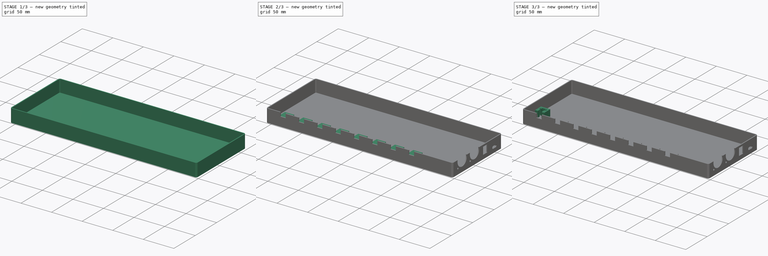
[diagram: build sequence overview — one tinted view per stage of 3, left to right]
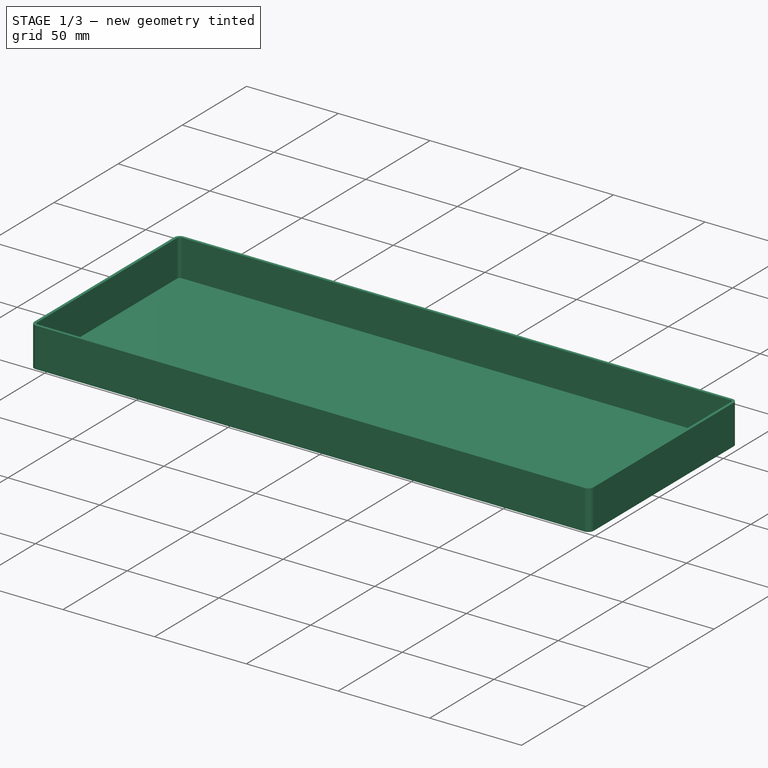
[diagram: stage 1 of 3 — iso view after this stage's code; geometry added in this stage tinted green]
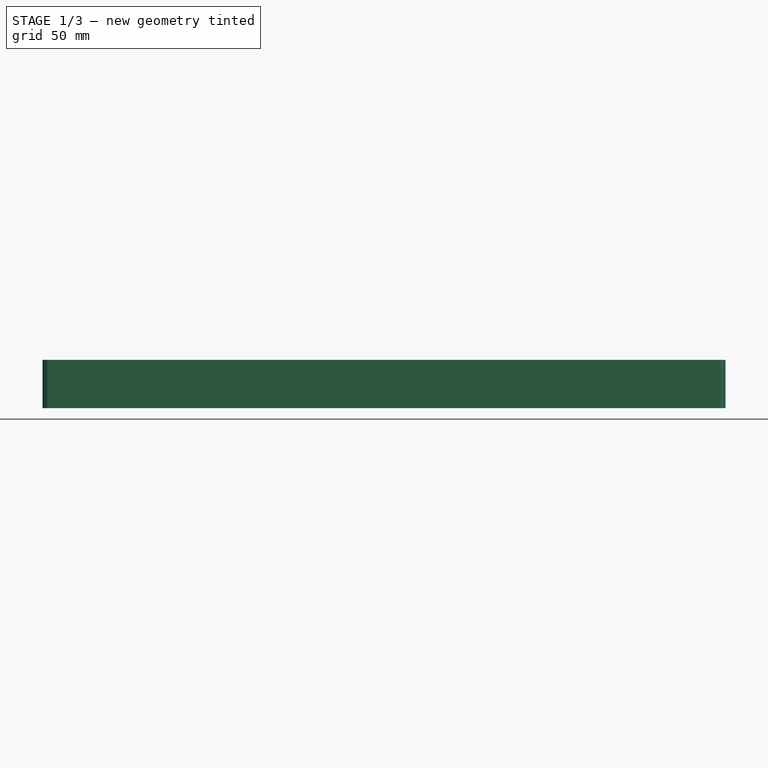
[diagram: stage 1 of 3 — front view after this stage's code; geometry added in this stage tinted green]
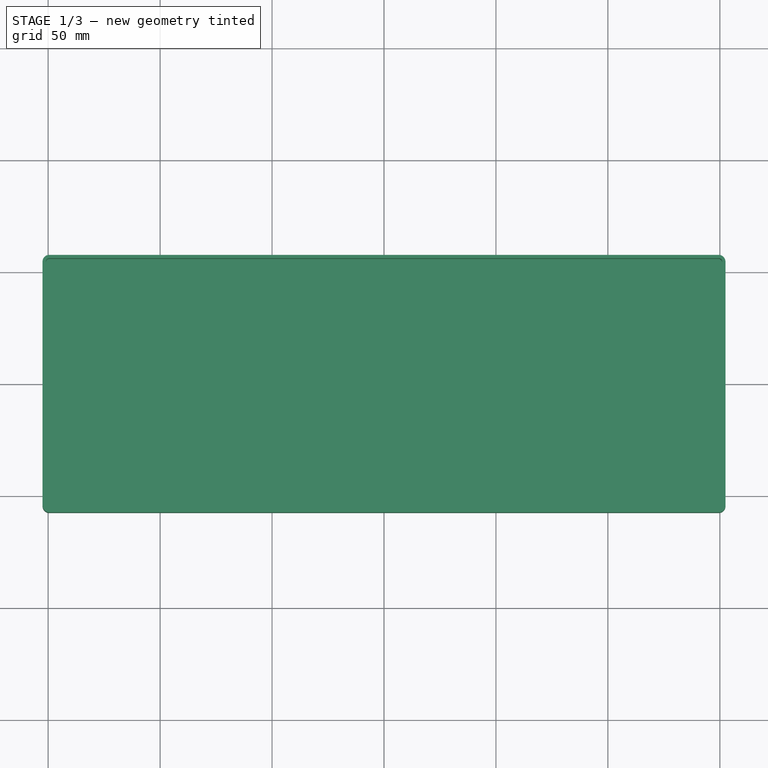
[diagram: stage 1 of 3 — top view after this stage's code; geometry added in this stage tinted green]
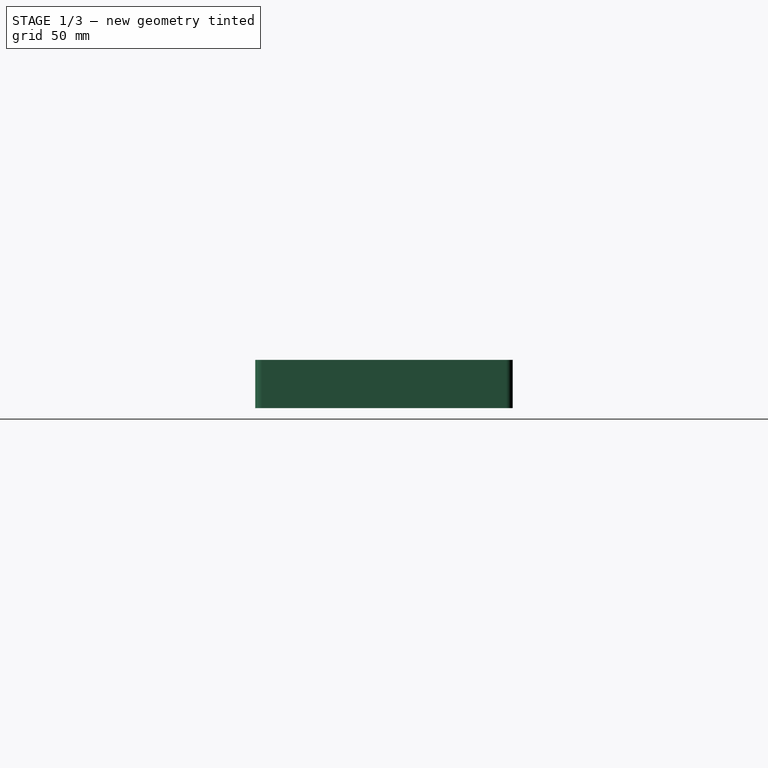
[diagram: stage 1 of 3 — right view after this stage's code; geometry added in this stage tinted green]
FCSTD DOCUMENT  (FreeCAD 0.19RUnknown)
Label: ELController case
License: All rights reserved
LicenseURL: http://en.wikipedia.org/wiki/All_rights_reserved
objects: Sketcher::SketchObject×7, PartDesign::Plane×6, PartDesign::Pad×4, PartDesign::Pocket×3, PartDesign::Line×2, PartDesign::Point×2, Spreadsheet::Sheet×1, PartDesign::Body×1
note: 32 computed .brp shape members not serialized (recipe doc carries the construction recipe); baked Part::Feature solids carry a one-line shape summary decoded from their .brp

FEATURE [Sketcher::SketchObject] Sketch  label="Bottom"
  FullyConstrained = true
  MapMode = 5
  Support = -> [XY_Plane]
  expr: Constraints[11] = <<Variables>>.width + <<Variables>>.inset * 2 + <<Variables>>.thickness * 2
  expr: Constraints[10] = <<Variables>>.length + <<Variables>>.inset * 2 + <<Variables>>.thickness * 2
  expr: Constraints[28] = <<Variables>>.corner_radius
  expr: Constraints[30] = <<Variables>>.corner_radius
  expr: Constraints[31] = <<Variables>>.corner_radius
  expr: Constraints[29] = <<Variables>>.corner_radius
  sketch-geometry (14):
    g0: LineSegment StartX=-149.5 StartY=57.5 StartZ=0 EndX=149.5 EndY=57.5 EndZ=0
    g1: LineSegment StartX=152.5 StartY=54.5 StartZ=0 EndX=152.5 EndY=-54.5 EndZ=0
    g2: LineSegment StartX=149.5 StartY=-57.5 StartZ=0 EndX=-149.5 EndY=-57.5 EndZ=0
    g3: LineSegment StartX=-152.5 StartY=-54.5 StartZ=0 EndX=-152.5 EndY=54.5 EndZ=0
    g4: LineSegment StartX=-152.5 StartY=57.5 StartZ=0 EndX=0 EndY=0 EndZ=0
    g5: LineSegment StartX=0 StartY=0 StartZ=0 EndX=152.5 EndY=-57.5 EndZ=0
    g6: ArcOfCircle CenterX=-149.5 CenterY=-54.5 CenterZ=0 NormalX=0 NormalY=0 NormalZ=1 AngleXU=0 Radius=3 StartAngle=3.14159 EndAngle=4.71239
    g7: GeomPoint X=-152.5 Y=-57.5 Z=0
    g8: ArcOfCircle CenterX=-149.5 CenterY=54.5 CenterZ=0 NormalX=0 NormalY=0 NormalZ=1 AngleXU=0 Radius=3 StartAngle=1.5708 EndAngle=3.14159
    g9: GeomPoint X=-152.5 Y=57.5 Z=0
    g10: ArcOfCircle CenterX=149.5 CenterY=54.5 CenterZ=0 NormalX=0 NormalY=0 NormalZ=1 AngleXU=0 Radius=3 StartAngle=0 EndAngle=1.5708
    g11: GeomPoint X=152.5 Y=57.5 Z=0
    g12: ArcOfCircle CenterX=149.5 CenterY=-54.5 CenterZ=0 NormalX=0 NormalY=0 NormalZ=1 AngleXU=0 Radius=3 StartAngle=4.71239 EndAngle=6.28319
    g13: GeomPoint X=152.5 Y=-57.5 Z=0
  constraints (32):
    c: Horizontal(g0)
    c: Horizontal(g2)
    c: Vertical(g1)
    c: Vertical(g3)
    c: Coincident(g4,g9)
    c: Coincident(g4,g-1)
    c: Coincident(g5,g-1)
    c: Coincident(g5,g13)
    c: Equal(g4,g5)
    c: Parallel(g4,g5)
    c: Distance(g9,g7) = 115
    c: Distance(g11,g9) = 305
    c: PointOnObject(g7,g2)
    c: PointOnObject(g7,g3)
    c: Tangent(g2,g6) = 1.5708
    c: Tangent(g3,g6) = 1.5708
    c: PointOnObject(g9,g3)
    c: PointOnObject(g9,g0)
    c: Tangent(g3,g8) = 1.5708
    c: Tangent(g0,g8) = 1.5708
    c: PointOnObject(g11,g0)
    c: PointOnObject(g11,g1)
    c: Tangent(g0,g10) = 1.5708
    c: Tangent(g1,g10) = 1.5708
    c: PointOnObject(g13,g1)
    c: PointOnObject(g13,g2)
    c: Tangent(g1,g12) = 1.5708
    c: Tangent(g2,g12) = 1.5708
    c: Distance(g2,g7) = 3
    c: Distance(g3,g4) = 3
    c: Distance(g1,g11) = 3
    c: Distance(g2,g5) = 3
FEATURE [Spreadsheet::Sheet] Spreadsheet  label="Variables"
  cells = A1=width; B1(width)=300; D1=Connectors; G1=Connector spacing; A2=length; B2(length)=110; D2=Connector inset; E2(connector_inset)=0.5; G2=DMX center to edge female; H2=13; J2=PCB thickness; K2(pcb_thickness)=1.6; A3=height; B3(height)=20; D3=DMX diameter; E3(dmx_diameter)=22; G3=DMX center to edge male; H3=13.3; J3=PCB bottom distance; K3(pcb_bottom_distance)=5; A4=inset; B4(inset)=1; D4=DMX screw diameter; E4(dmx_screw_diameter)=3.2; G4=DMX edge to edge; H4=2.475; A5=corner radius; B5(corner_radius)=3; D5=DMX screw distance; E5(dmx_screw_distance)=9.9; G5=DMX spacing; H5(dmx_spacing)==H2 + H3 + H4; A6=thickness; B6(thickness)=1.5; D6=DMX bottom distance; E6(dmx_bottom_distance)=12.5; A7=channel count; B7(channel_count)=8; D8=barrel jack width; E8(barrel_jack_width)=9; G8=barrel jack center to edge; H8=7.5; D9=barrel jack height; E9(barrel_jack_height)=11; G9=barrel jack to DMX; H9=4.19; G10=barrel jack spacing; H10(barrel_jack_spacing)==H8 + H9 + H3; D12=USB width; E12(usb_width)=8.949999999999999; G12=USB center to edge; H12=6.62; D13=USB height; E13(usb_height)=3.13; G13=USB to barrel jack; H13=7.38; G14=USB spacing; H14(usb_spacing)==H12 + H13 + H8; G15=USB edge to board edge; H15=8.225; G16=USB edge spacing; H16==H15 + H12; G17=USB center spacing; H17(usb_center_spacing)==length / 2 - H16; G19=JST-SM width; H19(jst_sm_width)=7.8; G20=JST-SM height; H20(jst_sm_height)=7.5; G21=JST-SM lock width; H21(jst_sm_lock_width)=3.15; G22=JST-SM lock height; H22(jst_sm_lock_height)=2.9; G23=JST-SM spacing; H23(jst_sm_spacing)=30; G24=JST-SM to board edge; H24(jst_sm_to_board_edge)=25; G25=JST-SM bottom distance; H25(jst_sm_bottom_distance)=15; G26=JST-SM insertion tolerance; H26(jst_sm_insertion_tolerance)=0.5; G27=JST-SM holder width; H27(jst_sm_holder_width)=11.15; G28=JST-SM length; H28(jst_sm_length)=10.63; G29=JST-SM female width; H29(jst_sm_female_width)=5.51; G30=JST-SM female height; H30(jst_sm_female_height)=5; G31=JST-SM holder offset; H31(jst_sm_holder_offset)=4.6; G32=JST-SM clamping space; H32(jst_sm_clamping_space)=0.2; G33=JST-SM carrier overwidth; H33(jst_sm_carrier_overwidth)=2; G34=JST-SM carrier min thickness; H34(jst_sm_carrier_min_thickness)=3; G35=JST-SM carrier max thickness; H35(jst_sm_carrier_max_thickness)=10; G36=JST-SM holder arm space; H36(jst_sm_holder_arm_space)=1.3; G37=JST-SM holder arm thickness; H37(jst_sm_holder_arm_thickness)=0.9; G38=JST-SM holder arm peak offset; H38(jst_sm_holder_arm_peak_offset)=8; G39=JST-SM female end plate width; H39(jst_sm_female_end_plate_width)=1.3
FEATURE [PartDesign::Pad] Pad  label="Bottom001"
  Direction = (1,1,1)
  Length = 1.5
  Length2 = 100
  Profile = -> Sketch
  Type = 0
  expr: Length = <<Variables>>.thickness
FEATURE [PartDesign::Plane] DatumPlane  label="Bottom inside"
  Length = 342.457
  MapMode = 5
  Placement = pos=(0,0,1.5) rot=(0,0,1;0rad)
  ResizeMode = 0
  Support = -> [Pad]
  Width = 152.457
FEATURE [Sketcher::SketchObject] Sketch002  label="Sides"
  FullyConstrained = true
  MapMode = 5
  Placement = pos=(0,0,1.5) rot=(0,0,1;0rad)
  Support = -> [DatumPlane]
  expr: Constraints[58] = <<Variables>>.thickness
  expr: Constraints[56] = <<Variables>>.thickness
  expr: Constraints[53] = <<Variables>>.thickness
  expr: Constraints[54] = <<Variables>>.thickness
  expr: Constraints[11] = Sketch.Constraints[11]
  expr: Constraints[29] = Sketch.Constraints[29]
  expr: Constraints[31] = Sketch.Constraints[31]
  expr: Constraints[30] = Sketch.Constraints[30]
  expr: Constraints[28] = Sketch.Constraints[28]
  expr: Constraints[10] = Sketch.Constraints[10]
  sketch-geometry (26):
    g0: LineSegment StartX=-149.5 StartY=57.5 StartZ=0 EndX=149.5 EndY=57.5 EndZ=0
    g1: LineSegment StartX=152.5 StartY=54.5 StartZ=0 EndX=152.5 EndY=-54.5 EndZ=0
    g2: LineSegment StartX=149.5 StartY=-57.5 StartZ=0 EndX=-149.5 EndY=-57.5 EndZ=0
    g3: LineSegment StartX=-152.5 StartY=-54.5 StartZ=0 EndX=-152.5 EndY=54.5 EndZ=0
    g4: LineSegment StartX=-152.5 StartY=57.5 StartZ=0 EndX=0 EndY=0 EndZ=0
    g5: LineSegment StartX=0 StartY=0 StartZ=0 EndX=152.5 EndY=-57.5 EndZ=0
    g6: ArcOfCircle CenterX=-149.5 CenterY=-54.5 CenterZ=0 NormalX=0 NormalY=0 NormalZ=1 AngleXU=0 Radius=3 StartAngle=3.14159 EndAngle=4.71239
    g7: GeomPoint X=-152.5 Y=-57.5 Z=0
    g8: ArcOfCircle CenterX=-149.5 CenterY=54.5 CenterZ=0 NormalX=0 NormalY=0 NormalZ=1 AngleXU=0 Radius=3 StartAngle=1.5708 EndAngle=3.14159
    g9: GeomPoint X=-152.5 Y=57.5 Z=0
    g10: ArcOfCircle CenterX=149.5 CenterY=54.5 CenterZ=0 NormalX=0 NormalY=0 NormalZ=1 AngleXU=0 Radius=3 StartAngle=3e-16 EndAngle=1.5708
    g11: GeomPoint X=152.5 Y=57.5 Z=0
    g12: ArcOfCircle CenterX=149.5 CenterY=-54.5 CenterZ=0 NormalX=0 NormalY=0 NormalZ=1 AngleXU=0 Radius=3 StartAngle=4.71239 EndAngle=6.28319
    g13: GeomPoint X=152.5 Y=-57.5 Z=0
    g14: LineSegment StartX=-149.5 StartY=56 StartZ=0 EndX=149.5 EndY=56 EndZ=0
    g15: LineSegment StartX=151 StartY=54.5 StartZ=0 EndX=151 EndY=-54.5 EndZ=0
    g16: LineSegment StartX=149.5 StartY=-56 StartZ=0 EndX=-149.5 EndY=-56 EndZ=0
    g17: LineSegment StartX=-151 StartY=-54.5 StartZ=0 EndX=-151 EndY=54.5 EndZ=0
    g18: ArcOfCircle CenterX=-149.5 CenterY=54.5 CenterZ=0 NormalX=0 NormalY=0 NormalZ=1 AngleXU=0 Radius=1.5 StartAngle=1.5708 EndAngle=3.14159
    g19: ArcOfCircle CenterX=149.5 CenterY=54.5 CenterZ=0 NormalX=0 NormalY=0 NormalZ=1 AngleXU=0 Radius=1.5 StartAngle=-1.8e-15 EndAngle=1.5708
    g20: ArcOfCircle CenterX=149.5 CenterY=-54.5 CenterZ=0 NormalX=0 NormalY=0 NormalZ=1 AngleXU=0 Radius=1.5 StartAngle=4.71239 EndAngle=6.28319
    g21: ArcOfCircle CenterX=-149.5 CenterY=-54.5 CenterZ=0 NormalX=0 NormalY=0 NormalZ=1 AngleXU=0 Radius=1.5 StartAngle=3.14159 EndAngle=4.71239
    g22: LineSegment StartX=-149.5 StartY=-57.5 StartZ=0 EndX=-149.5 EndY=-56 EndZ=0
    g23: LineSegment StartX=-151 StartY=54.5 StartZ=0 EndX=-152.5 EndY=54.5 EndZ=0
    g24: LineSegment StartX=149.5 StartY=56 StartZ=0 EndX=149.5 EndY=57.5 EndZ=0
    g25: LineSegment StartX=151 StartY=-54.5 StartZ=0 EndX=152.5 EndY=-54.5 EndZ=0
  constraints (60):
    c: Horizontal(g0)
    c: Horizontal(g2)
    c: Vertical(g1)
    c: Vertical(g3)
    c: Coincident(g4,g9)
    c: Coincident(g4,g-1)
    c: Coincident(g5,g-1)
    c: Coincident(g5,g13)
    c: Equal(g4,g5)
    c: Parallel(g4,g5)
    c: Distance(g9,g7) = 115
    c: Distance(g11,g9) = 305
    c: PointOnObject(g7,g2)
    c: PointOnObject(g7,g3)
    c: Tangent(g2,g6) = 1.5708
    c: Tangent(g3,g6) = 1.5708
    c: PointOnObject(g9,g3)
    c: PointOnObject(g9,g0)
    c: Tangent(g3,g8) = 1.5708
    c: Tangent(g0,g8) = 1.5708
    c: PointOnObject(g11,g0)
    c: PointOnObject(g11,g1)
    c: Tangent(g0,g10) = 1.5708
    c: Tangent(g1,g10) = 1.5708
    c: PointOnObject(g13,g1)
    c: PointOnObject(g13,g2)
    c: Tangent(g1,g12) = 1.5708
    c: Tangent(g2,g12) = 1.5708
    c: Distance(g2,g7) = 3
    c: Distance(g3,g4) = 3
    c: Distance(g1,g11) = 3
    c: Distance(g2,g5) = 3
    c: Horizontal(g14)
    c: Horizontal(g16)
    c: Vertical(g15)
    c: Vertical(g17)
    c: Tangent(g17,g18) = 1.5708
    c: Tangent(g14,g18) = 1.5708
    c: Tangent(g14,g19) = 1.5708
    c: Tangent(g15,g19) = 1.5708
    c: Tangent(g16,g20) = 1.5708
    c: Tangent(g15,g20) = 1.5708
    c: Tangent(g16,g21) = 1.5708
    c: Tangent(g17,g21) = 1.5708
    c: Coincident(g22,g2)
    c: Coincident(g22,g16)
    c: Coincident(g23,g17)
    c: Coincident(g23,g3)
    c: Coincident(g24,g14)
    c: Coincident(g24,g0)
    c: Coincident(g25,g15)
    c: Coincident(g25,g1)
    c: Perpendicular(g2,g22)
    c: Distance(g22) = 1.5
    c: Distance(g17,g3) = 1.5
    c: Perpendicular(g17,g23)
    c: Distance(g24) = 1.5
    c: Perpendicular(g14,g24)
    c: Distance(g25) = 1.5
    c: Perpendicular(g15,g25)
FEATURE [PartDesign::Pad] Pad001  label="Sides001"
  BaseFeature = -> Pad
  Direction = (1,1,1)
  Length = 20
  Length2 = 100
  Profile = -> Sketch002
  Type = 0
  expr: Length = <<Variables>>.height
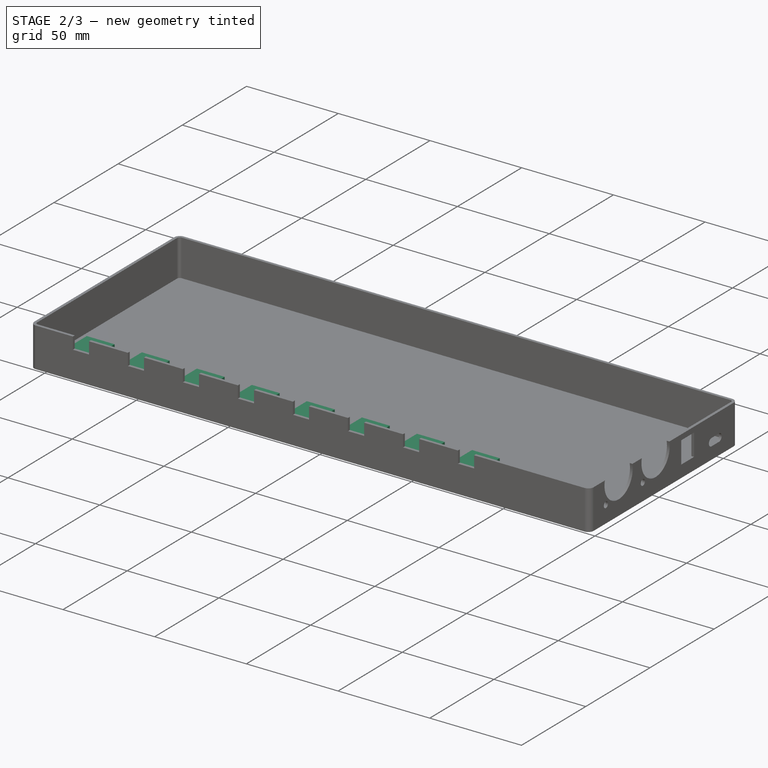
[diagram: stage 2 of 3 — iso view after this stage's code; geometry added in this stage tinted green]
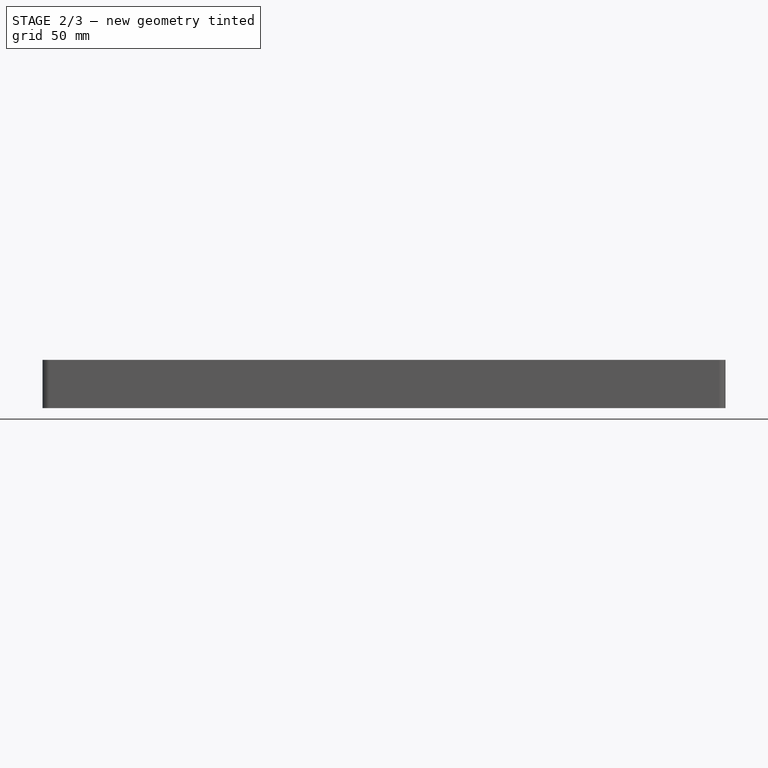
[diagram: stage 2 of 3 — front view after this stage's code; geometry added in this stage tinted green]
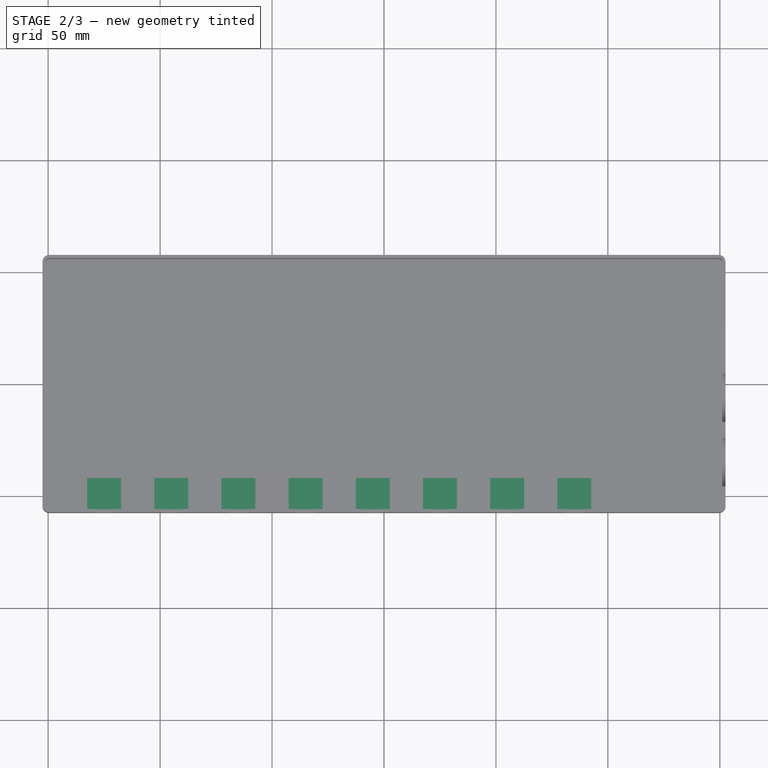
[diagram: stage 2 of 3 — top view after this stage's code; geometry added in this stage tinted green]
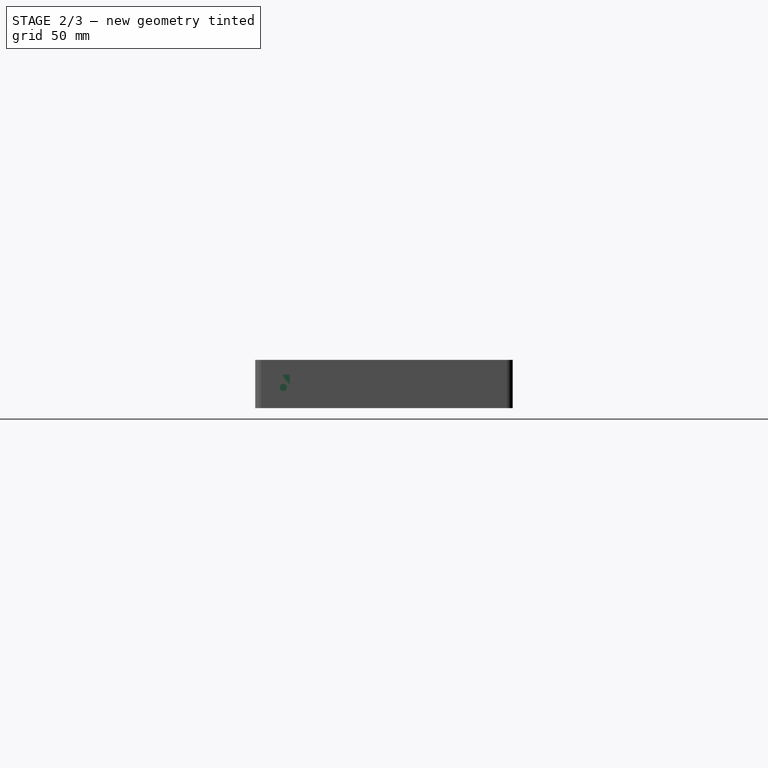
[diagram: stage 2 of 3 — right view after this stage's code; geometry added in this stage tinted green]
FEATURE [PartDesign::Plane] DatumPlane004  label="Left side"
  Length = 130.166
  MapMode = 5
  Placement = pos=(152.5,0,0) rot=(0.57735,0.57735,0.57735;2.0944rad)
  ResizeMode = 0
  Support = -> [Pad001]
  Width = 65.1658
FEATURE [Sketcher::SketchObject] Sketch003  label="Connectors"
  FullyConstrained = true
  MapMode = 5
  Placement = pos=(152.5,0,0) rot=(0.57735,0.57735,0.57735;2.0944rad)
  Support = -> [DatumPlane004]
  expr: Constraints[19] = <<Variables>>.dmx_screw_diameter
  expr: Constraints[23] = <<Variables>>.dmx_screw_distance
  expr: Constraints[61] = <<Variables>>.usb_center_spacing
  expr: Constraints[39] = <<Variables>>.dmx_spacing
  expr: Constraints[62] = <<Variables>>.dmx_bottom_distance
  expr: Constraints[20] = <<Variables>>.dmx_screw_distance
  expr: Constraints[49] = <<Variables>>.barrel_jack_spacing
  expr: Constraints[63] = <<Variables>>.pcb_thickness + <<Variables>>.pcb_bottom_distance
  expr: Constraints[57] = <<Variables>>.usb_width + <<Variables>>.connector_inset * 2
  expr: Constraints[50] = <<Variables>>.usb_spacing
  expr: Constraints[18] = <<Variables>>.dmx_screw_diameter
  expr: Constraints[14] = <<Variables>>.dmx_diameter
  expr: Constraints[22] = <<Variables>>.dmx_screw_distance
  expr: Constraints[17] = <<Variables>>.dmx_screw_diameter
  expr: Constraints[27] = <<Variables>>.dmx_screw_distance
  expr: Constraints[29] = <<Variables>>.barrel_jack_height + <<Variables>>.connector_inset * 2
  expr: Constraints[26] = <<Variables>>.dmx_screw_distance
  expr: Constraints[24] = <<Variables>>.dmx_screw_distance
  expr: Constraints[30] = <<Variables>>.usb_height + <<Variables>>.connector_inset * 2
  expr: Constraints[21] = <<Variables>>.dmx_screw_distance
  expr: Constraints[25] = <<Variables>>.dmx_screw_distance
  expr: Constraints[28] = <<Variables>>.barrel_jack_width + <<Variables>>.connector_inset * 2
  expr: Constraints[16] = <<Variables>>.dmx_screw_diameter
  expr: Constraints[15] = <<Variables>>.dmx_diameter
  sketch-geometry (24):
    g0: Circle CenterX=-35.11 CenterY=19.1 CenterZ=0 NormalX=0 NormalY=0 NormalZ=1 AngleXU=0 Radius=11
    g1: Circle CenterX=-6.335 CenterY=19.1 CenterZ=0 NormalX=0 NormalY=0 NormalZ=1 AngleXU=0 Radius=11
    g2: LineSegment StartX=13.655 StartY=18.6 StartZ=0 EndX=23.655 EndY=18.6 EndZ=0
    g3: LineSegment StartX=23.655 StartY=18.6 StartZ=0 EndX=23.655 EndY=6.6 EndZ=0
    g4: LineSegment StartX=23.655 StartY=6.6 StartZ=0 EndX=13.655 EndY=6.6 EndZ=0
    g5: LineSegment StartX=13.655 StartY=6.6 StartZ=0 EndX=13.655 EndY=18.6 EndZ=0
    g6: ArcOfCircle CenterX=37.245 CenterY=8.665 CenterZ=0 NormalX=0 NormalY=0 NormalZ=1 AngleXU=0 Radius=2.065 StartAngle=1.5708 EndAngle=4.71239
    g7: ArcOfCircle CenterX=43.065 CenterY=8.665 CenterZ=0 NormalX=0 NormalY=0 NormalZ=1 AngleXU=0 Radius=2.065 StartAngle=4.71239 EndAngle=7.85398
    g8: LineSegment StartX=37.245 StartY=6.6 StartZ=0 EndX=43.065 EndY=6.6 EndZ=0
    g9: LineSegment StartX=37.245 StartY=10.73 StartZ=0 EndX=43.065 EndY=10.73 EndZ=0
    g10: Circle CenterX=-25.21 CenterY=29 CenterZ=0 NormalX=0 NormalY=0 NormalZ=1 AngleXU=0 Radius=1.6
    g11: Circle CenterX=-45.01 CenterY=9.2 CenterZ=0 NormalX=0 NormalY=0 NormalZ=1 AngleXU=0 Radius=1.6
    g12: Circle CenterX=-16.235 CenterY=9.2 CenterZ=0 NormalX=0 NormalY=0 NormalZ=1 AngleXU=0 Radius=1.6
    g13: Circle CenterX=3.565 CenterY=29 CenterZ=0 NormalX=0 NormalY=0 NormalZ=1 AngleXU=0 Radius=1.6
    g14: LineSegment StartX=43.065 StartY=6.6 StartZ=0 EndX=45.13 EndY=8.665 EndZ=0
    g15: LineSegment StartX=43.065 StartY=10.73 StartZ=0 EndX=45.13 EndY=8.665 EndZ=0
    g16: LineSegment StartX=-35.11 StartY=19.1 StartZ=0 EndX=-6.335 EndY=19.1 EndZ=0
    g17: LineSegment StartX=37.245 StartY=8.665 StartZ=0 EndX=40.155 EndY=8.665 EndZ=0
    g18: LineSegment StartX=40.155 StartY=8.665 StartZ=0 EndX=43.065 EndY=8.665 EndZ=0
    g19: LineSegment StartX=13.655 StartY=18.6 StartZ=0 EndX=18.655 EndY=12.6 EndZ=0
    g20: LineSegment StartX=18.655 StartY=12.6 StartZ=0 EndX=23.655 EndY=6.6 EndZ=0
    g21: LineSegment StartX=37.245 StartY=10.73 StartZ=0 EndX=35.18 EndY=8.665 EndZ=0
    g22: LineSegment StartX=35.18 StartY=8.665 StartZ=0 EndX=37.245 EndY=6.6 EndZ=0
    g23: LineSegment StartX=23.655 StartY=6.6 StartZ=0 EndX=37.245 EndY=6.6 EndZ=0
  constraints (64):
    c: Coincident(g2,g3)
    c: Coincident(g3,g4)
    c: Coincident(g4,g5)
    c: Coincident(g5,g2)
    c: Horizontal(g2)
    c: Horizontal(g4)
    c: Vertical(g3)
    c: Vertical(g5)
    c: Tangent(g6,g9) = 1.5708
    c: Tangent(g6,g8) = -1.5708
    c: Tangent(g8,g7) = -1.5708
    c: Tangent(g9,g7) = 1.5708
    c: Horizontal(g8)
    c: Equal(g6,g7)
    c: Diameter(g1) = 22
    c: Diameter(g0) = 22
    c: Diameter(g13) = 3.2
    c: Diameter(g12) = 3.2
    c: Diameter(g10) = 3.2
    c: Diameter(g11) = 3.2
    c: DistanceX(g0,g10) = 9.9
    c: DistanceX(g11,g0) = 9.9
    c: DistanceX(g1,g13) = 9.9
    c: DistanceX(g12,g1) = 9.9
    c: DistanceY(g1,g13) = 9.9
    c: DistanceY(g12,g1) = 9.9
    c: DistanceY(g0,g10) = 9.9
    c: DistanceY(g11,g0) = 9.9
    c: Distance(g2) = 10
    c: Distance(g5) = 12
    c: Distance(g6,g6) = 4.13
    c: Coincident(g14,g7)
    c: PointOnObject(g14,g7)
    c: Coincident(g15,g7)
    c: Coincident(g15,g14)
    c: Equal(g15,g14)
    c: Coincident(g16,g0)
    c: Coincident(g16,g1)
    c: Horizontal(g16)
    c: DistanceX(g0,g1) = 28.775
    c: Coincident(g17,g6)
    c: Horizontal(g17)
    c: Coincident(g18,g17)
    c: Equal(g18,g17)
    c: Coincident(g19,g2)
    c: Coincident(g20,g19)
    c: Coincident(g20,g3)
    c: Equal(g19,g20)
    c: Parallel(g19,g20)
    c: DistanceX(g1,g19) = 24.99
    c: DistanceX(g19,g17) = 21.5
    c: Coincident(g18,g7)
    c: Coincident(g21,g6)
    c: PointOnObject(g21,g6)
    c: Coincident(g22,g21)
    c: Coincident(g22,g6)
    c: Equal(g21,g22)
    c: DistanceX(g21,g14) = 9.95
    c: Coincident(g23,g3)
    c: Coincident(g23,g6)
    c: Horizontal(g23)
    c: DistanceX(g-1,g17) = 40.155
    c: DistanceY(g4,g1) = 12.5
    c: DistanceY(g-1,g4) = 6.6
FEATURE [PartDesign::Pocket] Pocket
  BaseFeature = -> Pad001
  Length = 1.5
  Length2 = 100
  Profile = -> Sketch003
  Type = 0
  expr: Length = <<Variables>>.thickness
FEATURE [PartDesign::Plane] DatumPlane005  label="Back side"
  Length = 329.698
  MapMode = 5
  Placement = pos=(0,-57.5,0) rot=(1,0,0;1.5708rad)
  ResizeMode = 0
  Support = -> [Pocket]
  Width = 74.6982
FEATURE [Sketcher::SketchObject] Sketch004  label="Channel connector holes"
  FullyConstrained = true
  MapMode = 5
  Placement = pos=(0,-57.5,0) rot=(1,0,0;1.5708rad)
  Support = -> [DatumPlane005]
  expr: Constraints[209] = <<Variables>>.width / 2 - <<Variables>>.jst_sm_to_board_edge
  expr: Constraints[44] = <<Variables>>.jst_sm_width + <<Variables>>.jst_sm_insertion_tolerance * 2
  expr: Constraints[25] = <<Variables>>.jst_sm_width + <<Variables>>.jst_sm_insertion_tolerance * 2
  expr: Constraints[245] = <<Variables>>.jst_sm_spacing
  expr: Constraints[184] = <<Variables>>.jst_sm_bottom_distance
  expr: Constraints[80] = <<Variables>>.jst_sm_width + <<Variables>>.jst_sm_insertion_tolerance * 2
  expr: Constraints[176] = <<Variables>>.jst_sm_lock_height
  expr: Constraints[19] = <<Variables>>.jst_sm_lock_width + <<Variables>>.jst_sm_insertion_tolerance * 2
  expr: Constraints[62] = <<Variables>>.jst_sm_width + <<Variables>>.jst_sm_insertion_tolerance * 2
  expr: Constraints[6] = <<Variables>>.jst_sm_height + <<Variables>>.jst_sm_insertion_tolerance * 2
  expr: Constraints[127] = <<Variables>>.jst_sm_width + <<Variables>>.jst_sm_insertion_tolerance * 2
  expr: Constraints[116] = <<Variables>>.jst_sm_width + <<Variables>>.jst_sm_insertion_tolerance * 2
  expr: Constraints[98] = <<Variables>>.jst_sm_width + <<Variables>>.jst_sm_insertion_tolerance * 2
  expr: Constraints[5] = <<Variables>>.jst_sm_width + <<Variables>>.jst_sm_insertion_tolerance * 2
  sketch-geometry (87):
    g0: LineSegment StartX=-120.6 StartY=23.5 StartZ=0 EndX=-120.6 EndY=15 EndZ=0
    g1: LineSegment StartX=-120.6 StartY=15 StartZ=0 EndX=-129.4 EndY=15 EndZ=0
    g2: LineSegment StartX=-129.4 StartY=15 StartZ=0 EndX=-129.4 EndY=23.5 EndZ=0
    g3: LineSegment StartX=-129.4 StartY=23.5 StartZ=0 EndX=-127.075 EndY=23.5 EndZ=0
    g4: LineSegment StartX=-127.075 StartY=23.5 StartZ=0 EndX=-127.075 EndY=26.4 EndZ=0
    g5: LineSegment StartX=-127.075 StartY=26.4 StartZ=0 EndX=-122.925 EndY=26.4 EndZ=0
    g6: LineSegment StartX=-122.925 StartY=26.4 StartZ=0 EndX=-122.925 EndY=23.5 EndZ=0
    g7: LineSegment StartX=-122.925 StartY=23.5 StartZ=0 EndX=-120.6 EndY=23.5 EndZ=0
    g8: LineSegment StartX=-90.6 StartY=23.5 StartZ=0 EndX=-90.6 EndY=15 EndZ=0
    g9: LineSegment StartX=-90.6 StartY=15 StartZ=0 EndX=-99.4 EndY=15 EndZ=0
    g10: LineSegment StartX=-99.4 StartY=15 StartZ=0 EndX=-99.4 EndY=23.5 EndZ=0
    g11: LineSegment StartX=-99.4 StartY=23.5 StartZ=0 EndX=-97.075 EndY=23.5 EndZ=0
    g12: LineSegment StartX=-97.075 StartY=23.5 StartZ=0 EndX=-97.075 EndY=26.4 EndZ=0
    g13: LineSegment StartX=-97.075 StartY=26.4 StartZ=0 EndX=-92.925 EndY=26.4 EndZ=0
    g14: LineSegment StartX=-92.925 StartY=26.4 StartZ=0 EndX=-92.925 EndY=23.5 EndZ=0
    g15: LineSegment StartX=-92.925 StartY=23.5 StartZ=0 EndX=-90.6 EndY=23.5 EndZ=0
    g16: LineSegment StartX=-60.6 StartY=23.5 StartZ=0 EndX=-60.6 EndY=15 EndZ=0
    g17: LineSegment StartX=-60.6 StartY=15 StartZ=0 EndX=-69.4 EndY=15 EndZ=0
    g18: LineSegment StartX=-69.4 StartY=15 StartZ=0 EndX=-69.4 EndY=23.5 EndZ=0
    g19: LineSegment StartX=-69.4 StartY=23.5 StartZ=0 EndX=-67.075 EndY=23.5 EndZ=0
    g20: LineSegment StartX=-67.075 StartY=23.5 StartZ=0 EndX=-67.075 EndY=26.4 EndZ=0
    g21: LineSegment StartX=-67.075 StartY=26.4 StartZ=0 EndX=-62.925 EndY=26.4 EndZ=0
    g22: LineSegment StartX=-62.925 StartY=26.4 StartZ=0 EndX=-62.925 EndY=23.5 EndZ=0
    g23: LineSegment StartX=-62.925 StartY=23.5 StartZ=0 EndX=-60.6 EndY=23.5 EndZ=0
    g24: LineSegment StartX=-30.6 StartY=23.5 StartZ=0 EndX=-30.6 EndY=15 EndZ=0
    g25: LineSegment StartX=-30.6 StartY=15 StartZ=0 EndX=-39.4 EndY=15 EndZ=0
    g26: LineSegment StartX=-39.4 StartY=15 StartZ=0 EndX=-39.4 EndY=23.5 EndZ=0
    g27: LineSegment StartX=-39.4 StartY=23.5 StartZ=0 EndX=-37.075 EndY=23.5 EndZ=0
    g28: LineSegment StartX=-37.075 StartY=23.5 StartZ=0 EndX=-37.075 EndY=26.4 EndZ=0
    g29: LineSegment StartX=-37.075 StartY=26.4 StartZ=0 EndX=-32.925 EndY=26.4 EndZ=0
    g30: LineSegment StartX=-32.925 StartY=26.4 StartZ=0 EndX=-32.925 EndY=23.5 EndZ=0
    g31: LineSegment StartX=-32.925 StartY=23.5 StartZ=0 EndX=-30.6 EndY=23.5 EndZ=0
    g32: LineSegment StartX=-0.6 StartY=23.5 StartZ=0 EndX=-0.6 EndY=15 EndZ=0
    g33: LineSegment StartX=-0.6 StartY=15 StartZ=0 EndX=-9.4 EndY=15 EndZ=0
    g34: LineSegment StartX=-9.4 StartY=15 StartZ=0 EndX=-9.4 EndY=23.5 EndZ=0
    g35: LineSegment StartX=-9.4 StartY=23.5 StartZ=0 EndX=-7.075 EndY=23.5 EndZ=0
    g36: LineSegment StartX=-7.075 StartY=23.5 StartZ=0 EndX=-7.075 EndY=26.4 EndZ=0
    g37: LineSegment StartX=-7.075 StartY=26.4 StartZ=0 EndX=-2.925 EndY=26.4 EndZ=0
    g38: LineSegment StartX=-2.925 StartY=26.4 StartZ=0 EndX=-2.925 EndY=23.5 EndZ=0
    g39: LineSegment StartX=-2.925 StartY=23.5 StartZ=0 EndX=-0.6 EndY=23.5 EndZ=0
    g40: LineSegment StartX=29.4 StartY=23.5 StartZ=0 EndX=29.4 EndY=15 EndZ=0
    g41: LineSegment StartX=29.4 StartY=15 StartZ=0 EndX=20.6 EndY=15 EndZ=0
    g42: LineSegment StartX=20.6 StartY=15 StartZ=0 EndX=20.6 EndY=23.5 EndZ=0
    g43: LineSegment StartX=20.6 StartY=23.5 StartZ=0 EndX=22.925 EndY=23.5 EndZ=0
    g44: LineSegment StartX=22.925 StartY=23.5 StartZ=0 EndX=22.925 EndY=26.4 EndZ=0
    g45: LineSegment StartX=22.925 StartY=26.4 StartZ=0 EndX=27.075 EndY=26.4 EndZ=0
    g46: LineSegment StartX=27.075 StartY=26.4 StartZ=0 EndX=27.075 EndY=23.5 EndZ=0
    g47: LineSegment StartX=27.075 StartY=23.5 StartZ=0 EndX=29.4 EndY=23.5 EndZ=0
    g48: LineSegment StartX=59.4 StartY=23.5 StartZ=0 EndX=59.4 EndY=15 EndZ=0
    g49: LineSegment StartX=59.4 StartY=15 StartZ=0 EndX=50.6 EndY=15 EndZ=0
    g50: LineSegment StartX=50.6 StartY=15 StartZ=0 EndX=50.6 EndY=23.5 EndZ=0
    g51: LineSegment StartX=57.075 StartY=23.5 StartZ=0 EndX=57.075 EndY=26.4 EndZ=0
    g52: LineSegment StartX=57.075 StartY=26.4 StartZ=0 EndX=52.925 EndY=26.4 EndZ=0
    g53: LineSegment StartX=52.925 StartY=26.4 StartZ=0 EndX=52.925 EndY=23.5 EndZ=0
    g54: LineSegment StartX=89.4 StartY=23.5 StartZ=0 EndX=89.4 EndY=15 EndZ=0
    g55: LineSegment StartX=89.4 StartY=15 StartZ=0 EndX=80.6 EndY=15 EndZ=0
    g56: LineSegment StartX=80.6 StartY=15 StartZ=0 EndX=80.6 EndY=23.5 EndZ=0
    g57: LineSegment StartX=80.6 StartY=23.5 StartZ=0 EndX=82.925 EndY=23.5 EndZ=0
    g58: LineSegment StartX=82.925 StartY=23.5 StartZ=0 EndX=82.925 EndY=26.4 EndZ=0
    g59: LineSegment StartX=82.925 StartY=26.4 StartZ=0 EndX=87.075 EndY=26.4 EndZ=0
    g60: LineSegment StartX=87.075 StartY=26.4 StartZ=0 EndX=87.075 EndY=23.5 EndZ=0
    g61: LineSegment StartX=87.075 StartY=23.5 StartZ=0 EndX=89.4 EndY=23.5 EndZ=0
    g62: LineSegment StartX=-120.6 StartY=15 StartZ=0 EndX=-99.4 EndY=15 EndZ=0
    g63: LineSegment StartX=-90.6 StartY=15 StartZ=0 EndX=-69.4 EndY=15 EndZ=0
    g64: LineSegment StartX=-60.6 StartY=15 StartZ=0 EndX=-39.4 EndY=15 EndZ=0
    g65: LineSegment StartX=-30.6 StartY=15 StartZ=0 EndX=-9.4 EndY=15 EndZ=0
    g66: LineSegment StartX=-0.6 StartY=15 StartZ=0 EndX=20.6 EndY=15 EndZ=0
    g67: LineSegment StartX=80.6 StartY=15 StartZ=0 EndX=59.4 EndY=15 EndZ=0
    g68: LineSegment StartX=50.6 StartY=15 StartZ=0 EndX=29.4 EndY=15 EndZ=0
    g69: LineSegment StartX=50.6 StartY=23.5 StartZ=0 EndX=52.925 EndY=23.5 EndZ=0
    g70: LineSegment StartX=57.075 StartY=23.5 StartZ=0 EndX=59.4 EndY=23.5 EndZ=0
    g71: LineSegment StartX=-120.6 StartY=23.5 StartZ=0 EndX=-125 EndY=19.25 EndZ=0
    g72: LineSegment StartX=-125 StartY=19.25 StartZ=0 EndX=-129.4 EndY=15 EndZ=0
    g73: LineSegment StartX=-99.4 StartY=15 StartZ=0 EndX=-95 EndY=19.25 EndZ=0
    g74: LineSegment StartX=-90.6 StartY=23.5 StartZ=0 EndX=-95 EndY=19.25 EndZ=0
    g75: LineSegment StartX=-69.4 StartY=15 StartZ=0 EndX=-65 EndY=19.25 EndZ=0
    g76: LineSegment StartX=-60.6 StartY=23.5 StartZ=0 EndX=-65 EndY=19.25 EndZ=0
    g77: LineSegment StartX=-39.4 StartY=15 StartZ=0 EndX=-35 EndY=19.25 EndZ=0
    g78: LineSegment StartX=-30.6 StartY=23.5 StartZ=0 EndX=-35 EndY=19.25 EndZ=0
    g79: LineSegment StartX=-0.6 StartY=23.5 StartZ=0 EndX=-5 EndY=19.25 EndZ=0
    g80: LineSegment StartX=-9.4 StartY=15 StartZ=0 EndX=-5 EndY=19.25 EndZ=0
    g81: LineSegment StartX=20.6 StartY=15 StartZ=0 EndX=25 EndY=19.25 EndZ=0
    g82: LineSegment StartX=29.4 StartY=23.5 StartZ=0 EndX=25 EndY=19.25 EndZ=0
    g83: LineSegment StartX=50.6 StartY=15 StartZ=0 EndX=55 EndY=19.25 EndZ=0
    g84: LineSegment StartX=55 StartY=19.25 StartZ=0 EndX=59.4 EndY=23.5 EndZ=0
    g85: LineSegment StartX=80.6 StartY=15 StartZ=0 EndX=85 EndY=19.25 EndZ=0
    g86: LineSegment StartX=89.4 StartY=23.5 StartZ=0 EndX=85 EndY=19.25 EndZ=0
  constraints (246):
    c: Coincident(g0,g1)
    c: Coincident(g1,g2)
    c: Horizontal(g1)
    c: Vertical(g0)
    c: Vertical(g2)
    c: DistanceX(g2,g0) = 8.8
    c: DistanceY(g2,g2) = 8.5
    c: Coincident(g2,g3)
    c: Coincident(g3,g4)
    c: Coincident(g4,g5)
    c: Horizontal(g5)
    c: Coincident(g5,g6)
    c: Vertical(g6)
    c: Coincident(g6,g7)
    c: Coincident(g7,g0)
    c: Horizontal(g3)
    c: Horizontal(g7)
    c: Vertical(g4)
    c: Equal(g3,g7)
    c: DistanceX(g5,g5) = 4.15
    c: Coincident(g8,g9)
    c: Coincident(g9,g10)
    c: Horizontal(g9)
    c: Vertical(g8)
    c: Vertical(g10)
    c: DistanceX(g10,g8) = 8.8
    c: Coincident(g10,g11)
    c: Coincident(g11,g12)
    c: Coincident(g12,g13)
    c: Horizontal(g13)
    c: Coincident(g13,g14)
    c: Vertical(g14)
    c: Coincident(g14,g15)
    c: Coincident(g15,g8)
    c: Horizontal(g11)
    c: Horizontal(g15)
    c: Vertical(g12)
    c: Equal(g11,g15)
    c: Equal(g5,g13) = 3.15
    c: Coincident(g16,g17)
    c: Coincident(g17,g18)
    c: Horizontal(g17)
    c: Vertical(g16)
    c: Vertical(g18)
    c: DistanceX(g18,g16) = 8.8
    c: Coincident(g18,g19)
    c: Coincident(g19,g20)
    c: Coincident(g20,g21)
    c: Horizontal(g21)
    c: Coincident(g21,g22)
    c: Vertical(g22)
    c: Coincident(g22,g23)
    c: Coincident(g23,g16)
    c: Horizontal(g19)
    c: Horizontal(g23)
    c: Vertical(g20)
    c: Equal(g19,g23)
    c: Coincident(g24,g25)
    c: Coincident(g25,g26)
    c: Horizontal(g25)
    c: Vertical(g24)
    c: Vertical(g26)
    c: DistanceX(g26,g24) = 8.8
    c: Coincident(g26,g27)
    c: Coincident(g27,g28)
    c: Coincident(g28,g29)
    c: Horizontal(g29)
    c: Coincident(g29,g30)
    c: Vertical(g30)
    c: Coincident(g30,g31)
    c: Coincident(g31,g24)
    c: Horizontal(g27)
    c: Horizontal(g31)
    c: Vertical(g28)
    c: Equal(g27,g31)
    c: Coincident(g32,g33)
    c: Coincident(g33,g34)
    c: Horizontal(g33)
    c: Vertical(g32)
    c: Vertical(g34)
    c: DistanceX(g34,g32) = 8.8
    c: Coincident(g34,g35)
    c: Coincident(g35,g36)
    c: Coincident(g36,g37)
    c: Horizontal(g37)
    c: Coincident(g37,g38)
    c: Vertical(g38)
    c: Coincident(g38,g39)
    c: Coincident(g39,g32)
    c: Horizontal(g35)
    c: Horizontal(g39)
    c: Vertical(g36)
    c: Equal(g35,g39)
    c: Coincident(g40,g41)
    c: Coincident(g41,g42)
    c: Horizontal(g41)
    c: Vertical(g40)
    c: Vertical(g42)
    c: DistanceX(g42,g40) = 8.8
    c: Coincident(g42,g43)
    c: Coincident(g43,g44)
    c: Coincident(g44,g45)
    c: Horizontal(g45)
    c: Coincident(g45,g46)
    c: Vertical(g46)
    c: Coincident(g46,g47)
    c: Coincident(g47,g40)
    c: Horizontal(g43)
    c: Horizontal(g47)
    c: Vertical(g44)
    c: Equal(g43,g47)
    c: Coincident(g48,g49)
    c: Coincident(g49,g50)
    c: Horizontal(g49)
    c: Vertical(g48)
    c: Vertical(g50)
    c: DistanceX(g50,g48) = 8.8
    c: Coincident(g51,g52)
    c: Horizontal(g52)
    c: Coincident(g52,g53)
    c: Vertical(g53)
    c: Vertical(g51)
    c: Coincident(g54,g55)
    c: Coincident(g55,g56)
    c: Horizontal(g55)
    c: Vertical(g54)
    c: Vertical(g56)
    c: DistanceX(g56,g54) = 8.8
    c: Coincident(g56,g57)
    c: Coincident(g57,g58)
    c: Coincident(g58,g59)
    c: Horizontal(g59)
    c: Coincident(g59,g60)
    c: Vertical(g60)
    c: Coincident(g60,g61)
    c: Coincident(g61,g54)
    c: Horizontal(g57)
    c: Horizontal(g61)
    c: Vertical(g58)
    c: Equal(g57,g61)
    c: Coincident(g62,g0)
    c: Coincident(g62,g9)
    c: Horizontal(g62)
    c: Coincident(g63,g8)
    c: Coincident(g63,g17)
    c: Coincident(g64,g16)
    c: Coincident(g64,g25)
    c: Coincident(g65,g24)
    c: Coincident(g65,g33)
    c: Horizontal(g65)
    c: Coincident(g66,g32)
    c: Coincident(g66,g41)
    c: Coincident(g67,g55)
    c: Coincident(g67,g48)
    c: Coincident(g68,g49)
    c: Coincident(g68,g40)
    c: Horizontal(g68)
    c: Horizontal(g67)
    c: Horizontal(g66)
    c: Horizontal(g64)
    c: Horizontal(g63)
    c: Equal(g2,g0)
    c: Equal(g34,g32)
    c: Equal(g42,g40)
    c: Equal(g32,g42)
    c: Equal(g24,g26)
    c: Equal(g24,g34)
    c: Equal(g16,g26)
    c: Equal(g18,g8)
    c: Equal(g8,g10)
    c: Equal(g10,g0)
    c: Equal(g16,g18)
    c: Equal(g50,g40)
    c: Equal(g50,g48)
    c: Equal(g48,g56)
    c: Equal(g56,g54)
    c: DistanceY(g4,g4) = 2.9
    c: Equal(g4,g12)
    c: Equal(g20,g12)
    c: Equal(g28,g20)
    c: Equal(g36,g28)
    c: Equal(g44,g36)
    c: Equal(g51,g44)
    c: Equal(g58,g51)
    c: DistanceY(g-1,g54) = 15
    c: Equal(g62,g63)
    c: Equal(g63,g64)
    c: Equal(g64,g65)
    c: Equal(g65,g66)
    c: Equal(g66,g68)
    c: Equal(g13,g21)
    c: Equal(g21,g29)
    c: Equal(g29,g37)
    c: Equal(g37,g45)
    c: Equal(g45,g52)
    c: Equal(g52,g59)
    c: Equal(g68,g67)
    c: Coincident(g69,g50)
    c: Coincident(g69,g53)
    c: Horizontal(g69)
    c: Coincident(g70,g51)
    c: Coincident(g70,g48)
    c: Horizontal(g70)
    c: Equal(g69,g70)
    c: Coincident(g71,g0)
    c: Coincident(g72,g71)
    c: Coincident(g72,g1)
    c: Equal(g71,g72)
    c: Parallel(g71,g72)
    c: DistanceX(g71,g-1) = 125
    c: Coincident(g73,g9)
    c: Coincident(g74,g8)
    c: Coincident(g74,g73)
    c: Coincident(g75,g17)
    c: Coincident(g76,g16)
    c: Coincident(g76,g75)
    c: Coincident(g77,g25)
    c: Coincident(g78,g24)
    c: Coincident(g78,g77)
    c: Coincident(g79,g32)
    c: Coincident(g80,g33)
    c: Coincident(g80,g79)
    c: Coincident(g81,g41)
    c: Coincident(g82,g40)
    c: Coincident(g82,g81)
    c: Coincident(g83,g49)
    c: Coincident(g84,g83)
    c: Coincident(g84,g48)
    c: Coincident(g85,g55)
    c: Coincident(g86,g54)
    c: Coincident(g86,g85)
    c: Equal(g86,g85)
    c: Equal(g84,g83)
    c: Equal(g82,g81)
    c: Equal(g79,g80)
    c: Equal(g78,g77)
    c: Equal(g76,g75)
    c: Equal(g74,g73)
    c: Parallel(g74,g73)
    c: Parallel(g75,g76)
    c: Parallel(g77,g78)
    c: Parallel(g79,g80)
    c: Parallel(g81,g82)
    c: Parallel(g83,g84)
    c: Parallel(g85,g86)
    c: DistanceX(g71,g73) = 30
FEATURE [PartDesign::Pocket] Pocket001
  BaseFeature = -> Pocket
  Length = 1.5
  Length2 = 100
  Profile = -> Sketch004
  Type = 0
  expr: Length = <<Variables>>.thickness
FEATURE [PartDesign::Plane] DatumPlane006  label="Back inside"
  Length = 329.698
  MapMode = 5
  Placement = pos=(0,-56,0) rot=(0,0.707107,0.707107;3.14159rad)
  ResizeMode = 0
  Support = -> [Pocket001]
  Width = 74.6982
FEATURE [PartDesign::Line] DatumLine
  AttacherType = Attacher::AttachEngineLine
  Length = 20
  MapMode = 43
  Placement = pos=(-125,-56,0) rot=(0,0,1;0rad)
  ResizeMode = 0
  Support = -> [Pocket001]
FEATURE [PartDesign::Line] DatumLine001
  AttacherType = Attacher::AttachEngineLine
  Length = 20
  MapMode = 29
  Placement = pos=(0,-56,15) rot=(0.57735,-0.57735,-0.57735;2.0944rad)
  ResizeMode = 0
  Support = -> [Pocket001]
FEATURE [Sketcher::SketchObject] Sketch005  label="Channel plug carrier bottom"
  ExternalGeometry = -> [DatumLine,DatumLine001]
  FullyConstrained = true
  MapMode = 5
  Placement = pos=(0,-56,0) rot=(0,0.707107,0.707107;3.14159rad)
  Support = -> [DatumPlane006]
  expr: Constraints[117] = <<Variables>>.jst_sm_spacing
  expr: Constraints[37] = <<Variables>>.jst_sm_holder_width + <<Variables>>.jst_sm_carrier_overwidth * 2
  expr: Constraints[68] = <<Variables>>.jst_sm_carrier_max_thickness
  sketch-geometry (43):
    g0: LineSegment StartX=-92.575 StartY=15 StartZ=0 EndX=-77.425 EndY=15 EndZ=0
    g1: LineSegment StartX=-77.425 StartY=15 StartZ=0 EndX=-77.425 EndY=5 EndZ=0
    g2: LineSegment StartX=-77.425 StartY=5 StartZ=0 EndX=-92.575 EndY=5 EndZ=0
    g3: LineSegment StartX=-92.575 StartY=5 StartZ=0 EndX=-92.575 EndY=15 EndZ=0
    g4: LineSegment StartX=-62.575 StartY=15 StartZ=0 EndX=-47.425 EndY=15 EndZ=0
    g5: LineSegment StartX=-47.425 StartY=15 StartZ=0 EndX=-47.425 EndY=5 EndZ=0
    g6: LineSegment StartX=-47.425 StartY=5 StartZ=0 EndX=-62.575 EndY=5 EndZ=0
    g7: LineSegment StartX=-62.575 StartY=5 StartZ=0 EndX=-62.575 EndY=15 EndZ=0
    g8: LineSegment StartX=-17.425 StartY=5 StartZ=0 EndX=-17.425 EndY=15 EndZ=0
    g9: LineSegment StartX=-17.425 StartY=15 StartZ=0 EndX=-32.575 EndY=15 EndZ=0
    g10: LineSegment StartX=-32.575 StartY=15 StartZ=0 EndX=-32.575 EndY=5 EndZ=0
    g11: LineSegment StartX=-2.575 StartY=15 StartZ=0 EndX=12.575 EndY=15 EndZ=0
    g12: LineSegment StartX=12.575 StartY=15 StartZ=0 EndX=12.575 EndY=5 EndZ=0
    g13: LineSegment StartX=12.575 StartY=5 StartZ=0 EndX=-2.575 EndY=5 EndZ=0
    g14: LineSegment StartX=-2.575 StartY=5 StartZ=0 EndX=-2.575 EndY=15 EndZ=0
    g15: LineSegment StartX=27.425 StartY=15 StartZ=0 EndX=42.575 EndY=15 EndZ=0
    g16: LineSegment StartX=42.575 StartY=15 StartZ=0 EndX=42.575 EndY=5 EndZ=0
    g17: LineSegment StartX=42.575 StartY=5 StartZ=0 EndX=27.425 EndY=5 EndZ=0
    g18: LineSegment StartX=27.425 StartY=5 StartZ=0 EndX=27.425 EndY=15 EndZ=0
    g19: LineSegment StartX=57.425 StartY=15 StartZ=0 EndX=72.575 EndY=15 EndZ=0
    g20: LineSegment StartX=72.575 StartY=15 StartZ=0 EndX=72.575 EndY=5 EndZ=0
    g21: LineSegment StartX=72.575 StartY=5 StartZ=0 EndX=57.425 EndY=5 EndZ=0
    g22: LineSegment StartX=57.425 StartY=5 StartZ=0 EndX=57.425 EndY=15 EndZ=0
    g23: LineSegment StartX=87.425 StartY=15 StartZ=0 EndX=102.575 EndY=15 EndZ=0
    g24: LineSegment StartX=102.575 StartY=15 StartZ=0 EndX=102.575 EndY=5 EndZ=0
    g25: LineSegment StartX=102.575 StartY=5 StartZ=0 EndX=87.425 EndY=5 EndZ=0
    g26: LineSegment StartX=87.425 StartY=5 StartZ=0 EndX=87.425 EndY=15 EndZ=0
    g27: LineSegment StartX=117.425 StartY=5 StartZ=0 EndX=132.575 EndY=5 EndZ=0
    g28: LineSegment StartX=132.575 StartY=5 StartZ=0 EndX=132.575 EndY=15 EndZ=0
    g29: LineSegment StartX=132.575 StartY=15 StartZ=0 EndX=117.425 EndY=15 EndZ=0
    g30: LineSegment StartX=117.425 StartY=15 StartZ=0 EndX=117.425 EndY=5 EndZ=0
    g31: LineSegment StartX=42.575 StartY=5 StartZ=0 EndX=57.425 EndY=5 EndZ=0
    g32: LineSegment StartX=72.575 StartY=5 StartZ=0 EndX=87.425 EndY=5 EndZ=0
    g33: LineSegment StartX=27.425 StartY=5 StartZ=0 EndX=12.575 EndY=5 EndZ=0
    g34: LineSegment StartX=-77.425 StartY=5 StartZ=0 EndX=-62.575 EndY=5 EndZ=0
    g35: LineSegment StartX=102.575 StartY=5 StartZ=0 EndX=117.425 EndY=5 EndZ=0
    g36: LineSegment StartX=-47.425 StartY=5 StartZ=0 EndX=-32.575 EndY=5 EndZ=0
    g37: LineSegment StartX=-17.425 StartY=5 StartZ=0 EndX=-2.575 EndY=5 EndZ=0
    g38: LineSegment StartX=-32.575 StartY=5 StartZ=0 EndX=-17.425 EndY=5 EndZ=0
    g39: LineSegment StartX=117.425 StartY=5 StartZ=0 EndX=125 EndY=10 EndZ=0
    g40: LineSegment StartX=132.575 StartY=15 StartZ=0 EndX=125 EndY=10 EndZ=0
    g41: LineSegment StartX=87.425 StartY=5 StartZ=0 EndX=95 EndY=10 EndZ=0
    g42: LineSegment StartX=95 StartY=10 StartZ=0 EndX=102.575 EndY=15 EndZ=0
  constraints (120):
    c: Coincident(g0,g1)
    c: Coincident(g1,g2)
    c: Coincident(g2,g3)
    c: Coincident(g3,g0)
    c: Horizontal(g0)
    c: Horizontal(g2)
    c: Vertical(g1)
    c: Vertical(g3)
    c: Coincident(g4,g5)
    c: Coincident(g5,g6)
    c: Coincident(g6,g7)
    c: Coincident(g7,g4)
    c: Horizontal(g4)
    c: Horizontal(g6)
    c: Vertical(g5)
    c: Vertical(g7)
    c: Coincident(g8,g9)
    c: Coincident(g9,g10)
    c: Horizontal(g9)
    c: Vertical(g8)
    c: Vertical(g10)
    c: Coincident(g11,g12)
    c: Coincident(g12,g13)
    c: Coincident(g13,g14)
    c: Coincident(g14,g11)
    c: Horizontal(g11)
    c: Horizontal(g13)
    c: Vertical(g12)
    c: Vertical(g14)
    c: Coincident(g15,g16)
    c: Coincident(g16,g17)
    c: Coincident(g17,g18)
    c: Coincident(g18,g15)
    c: Horizontal(g15)
    c: Horizontal(g17)
    c: Vertical(g16)
    c: Vertical(g18)
    c: DistanceX(g2,g2) = 15.15
    c: Equal(g2,g6)
    c: Equal(g6,g9)
    c: Equal(g13,g17)
    c: Coincident(g19,g20)
    c: Coincident(g20,g21)
    c: Coincident(g21,g22)
    c: Coincident(g22,g19)
    c: Horizontal(g19)
    c: Horizontal(g21)
    c: Vertical(g20)
    c: Vertical(g22)
    c: Coincident(g23,g24)
    c: Coincident(g24,g25)
    c: Coincident(g25,g26)
    c: Coincident(g26,g23)
    c: Horizontal(g23)
    c: Horizontal(g25)
    c: Vertical(g24)
    c: Vertical(g26)
    c: Coincident(g27,g28)
    c: Coincident(g28,g29)
    c: Coincident(g29,g30)
    c: Coincident(g30,g27)
    c: Horizontal(g27)
    c: Horizontal(g29)
    c: Vertical(g28)
    c: Vertical(g30)
    c: Equal(g17,g21)
    c: Equal(g21,g25)
    c: Equal(g25,g29)
    c: DistanceY(g3,g3) = 10
    c: Equal(g3,g7)
    c: Equal(g7,g10)
    c: Equal(g10,g14)
    c: Equal(g14,g18)
    c: Equal(g18,g22)
    c: Equal(g22,g26)
    c: Equal(g26,g30)
    c: Coincident(g31,g16)
    c: Coincident(g31,g21)
    c: Coincident(g32,g20)
    c: Coincident(g32,g25)
    c: Coincident(g33,g17)
    c: Coincident(g33,g12)
    c: Horizontal(g33)
    c: Coincident(g34,g1)
    c: Coincident(g34,g6)
    c: Horizontal(g34)
    c: Horizontal(g32)
    c: Horizontal(g31)
    c: Coincident(g35,g24)
    c: Coincident(g35,g27)
    c: Horizontal(g35)
    c: Coincident(g36,g5)
    c: Coincident(g36,g10)
    c: Horizontal(g36)
    c: Coincident(g37,g8)
    c: Coincident(g37,g13)
    c: Coincident(g38,g10)
    c: Coincident(g38,g8)
    c: Horizontal(g38)
    c: Horizontal(g37)
    c: Coincident(g39,g27)
    c: Coincident(g40,g28)
    c: Coincident(g40,g39)
    c: Equal(g40,g39)
    c: Parallel(g39,g40)
    c: Equal(g35,g32)
    c: Equal(g32,g31)
    c: Equal(g33,g31)
    c: Equal(g33,g37)
    c: Equal(g37,g36)
    c: Equal(g36,g34)
    c: Equal(g38,g13)
    c: Coincident(g41,g25)
    c: Coincident(g42,g41)
    c: Coincident(g42,g23)
    c: Equal(g42,g41)
    c: Parallel(g42,g41)
    c: DistanceX(g41,g39) = 30
    c: PointOnObject(g39,g-3)
    c: PointOnObject(g28,g-4)
FEATURE [PartDesign::Pad] Pad002
  BaseFeature = -> Pocket001
  Direction = (1,1,1)
  Length = 13.93
  Length2 = 100
  Profile = -> Sketch005
  Type = 0
  expr: Length = <<Variables>>.jst_sm_length + <<Variables>>.jst_sm_female_end_plate_width + <<Variables>>.jst_sm_carrier_overwidth
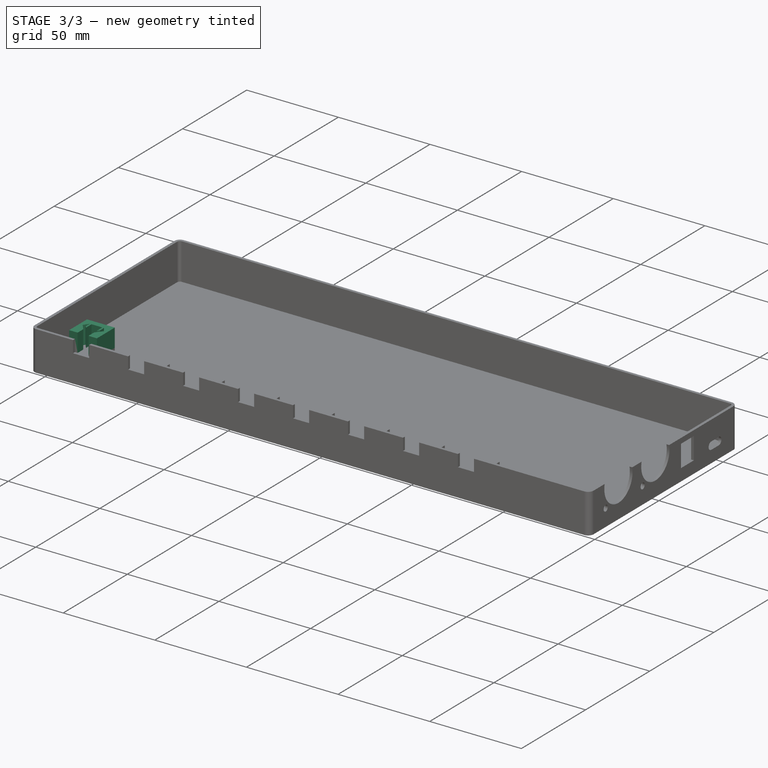
[diagram: stage 3 of 3 — iso view after this stage's code; geometry added in this stage tinted green]
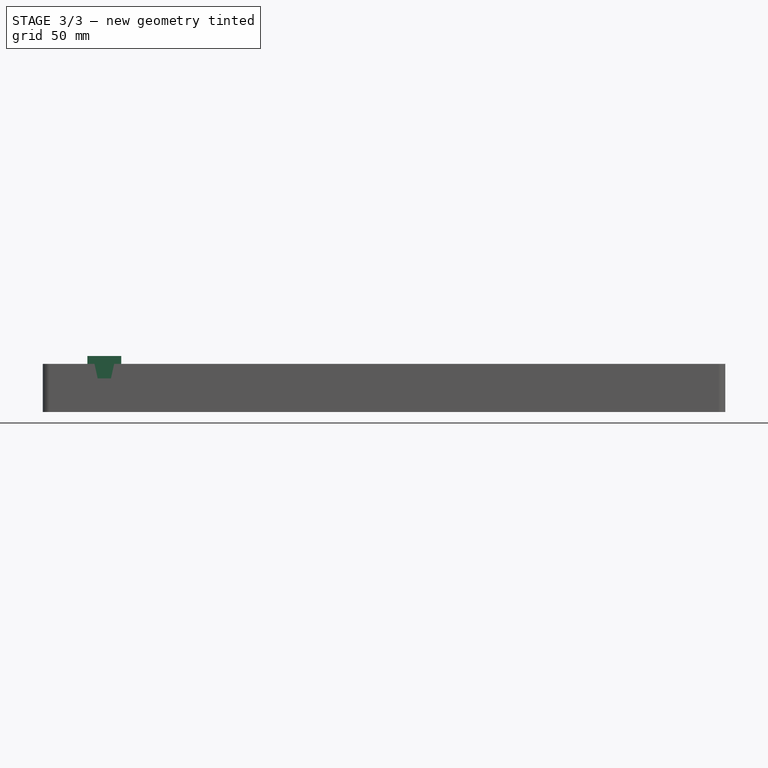
[diagram: stage 3 of 3 — front view after this stage's code; geometry added in this stage tinted green]
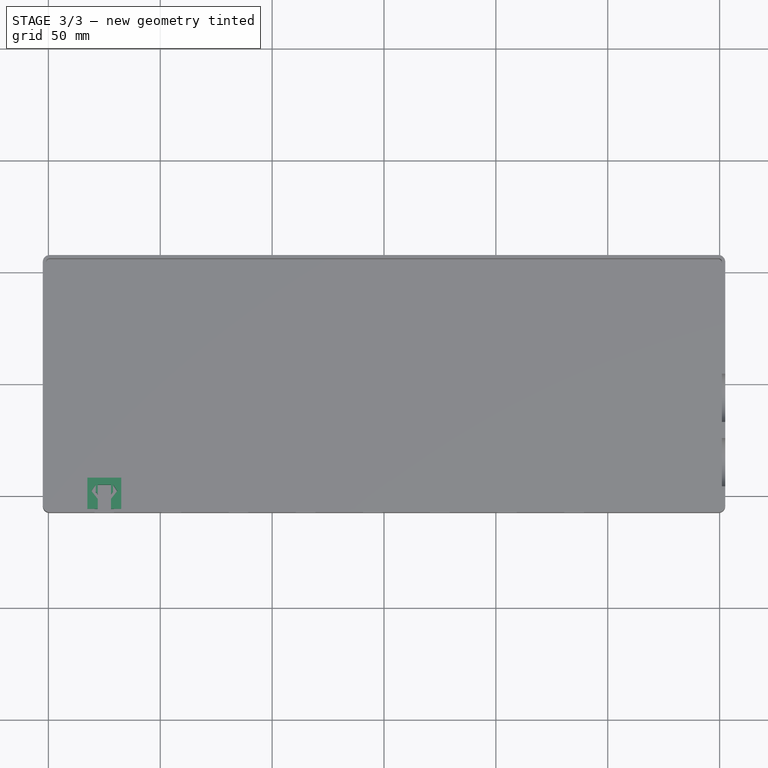
[diagram: stage 3 of 3 — top view after this stage's code; geometry added in this stage tinted green]
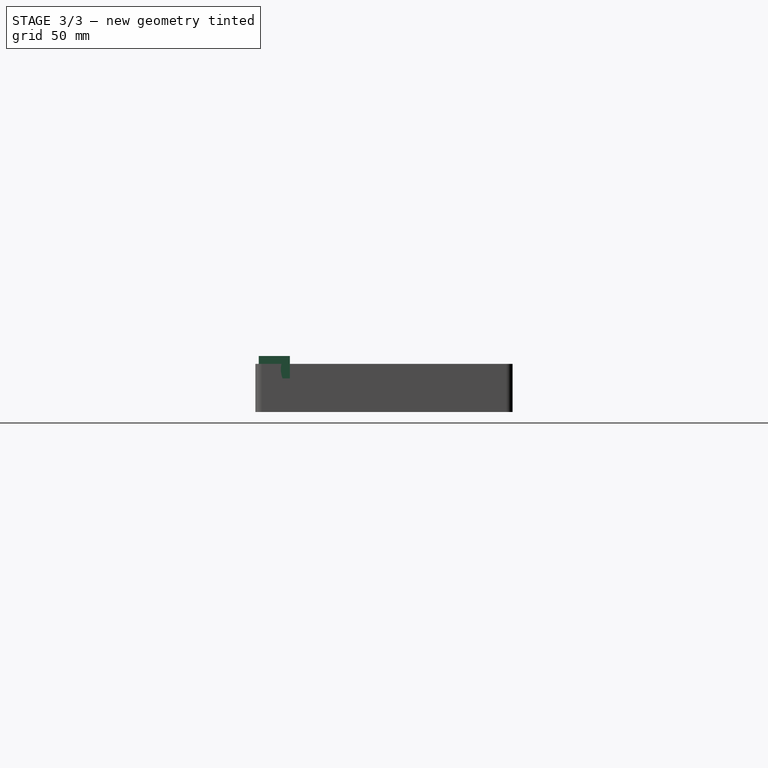
[diagram: stage 3 of 3 — right view after this stage's code; geometry added in this stage tinted green]
FEATURE [PartDesign::Point] DatumPoint001
  AttacherType = Attacher::AttachEnginePoint
  MapMode = 37
  Placement = pos=(-132.575,-56,5) rot=(0,0,1;0rad)
  Support = -> [Pad002]
FEATURE [PartDesign::Point] DatumPoint
  AttacherType = Attacher::AttachEnginePoint
  MapMode = 37
  Placement = pos=(-132.575,-56,15) rot=(0,0,1;0rad)
FEATURE [PartDesign::Plane] DatumPlane009  label="channel output side"
  Length = 130.166
  MapMode = 5
  Placement = pos=(-132.575,0,0) rot=(0.57735,-0.57735,-0.57735;2.0944rad)
  ResizeMode = 0
  Support = -> [Pad002]
  Width = 65.1658
FEATURE [Sketcher::SketchObject] Sketch006  label="Channel carrier side profile"
  ExternalGeometry = -> [Pad002,DatumPoint001,DatumLine]
  FullyConstrained = false
  MapMode = 5
  Placement = pos=(-132.575,0,0) rot=(0.57735,-0.57735,-0.57735;2.0944rad)
  Support = -> [DatumPlane009]
  expr: Constraints[13] = <<Variables>>.jst_sm_carrier_min_thickness
  expr: Constraints[9] = <<Variables>>.jst_sm_length + <<Variables>>.jst_sm_female_end_plate_width + <<Variables>>.jst_sm_carrier_overwidth
  sketch-geometry (15):
    g0: LineSegment StartX=41.07 StartY=4 StartZ=0 EndX=41.07 EndY=15 EndZ=0
    g1: LineSegment StartX=41.07 StartY=4 StartZ=0 EndX=56 EndY=4 EndZ=0
    g2: LineSegment StartX=42.07 StartY=15 StartZ=0 EndX=56 EndY=15 EndZ=0
    g3: LineSegment StartX=56 StartY=4 StartZ=0 EndX=56 EndY=5 EndZ=0
    g4: LineSegment StartX=41.07 StartY=15 StartZ=0 EndX=42.07 EndY=15 EndZ=0
    g5: LineSegment StartX=42.07 StartY=15 StartZ=0 EndX=42.07 EndY=12 EndZ=0
    g6-g10: Circle x5 (B-spline internal-alignment scaffolding for g11; pole/knot coordinates omitted)
    g11: BSplineCurve PolesCount=5 KnotsCount=3 Degree=3 IsPeriodic=0
    g12: GeomPoint X=42.07 Y=12 Z=0
    g13: GeomPoint X=48.2972 Y=8.76818 Z=0
    g14: GeomPoint X=56 Y=5 Z=0
  constraints (29):
    c: Vertical(g0)
    c: Coincident(g1,g0)
    c: Horizontal(g1)
    c: Coincident(g2,g-3)
    c: Horizontal(g2)
    c: Coincident(g3,g1)
    c: Vertical(g3)
    c: Coincident(g3,g-4)
    c: DistanceY(g3,g3) = 1
    c: DistanceX(g2,g2) = 13.93
    c: Coincident(g4,g0)
    c: Coincident(g4,g2)
    c: Coincident(g5,g4)
    c: DistanceY(g5,g5) = 3
    c: Horizontal(g4)
    c: DistanceX(g4,g4) = 1
    c: Vertical(g5)
    c: Coincident(g11,g5)
    c: Weight(g6) = 1
    c: Equal(g6, g7-g10) x4
    c: Coincident(g11,g3)
    c: InternalAlignment(g6-g10 -> g11) x5
    c: InternalAlignment(g12,g11)
    c: InternalAlignment(g13,g11)
    c: InternalAlignment(g14,g11)
    c: DistanceX(g8) = 47.7364
    c: DistanceY(g8) = 8.58889
    c: DistanceX(g9) = 55.7904
    c: DistanceY(g9) = 7.00751
FEATURE [PartDesign::Plane] DatumPlane010  label="channel oputput floor"
  Length = 342.457
  MapMode = 5
  Placement = pos=(0,3.3e-15,15) rot=(0,0,1;0rad)
  ResizeMode = 0
  Support = -> [Pad002]
  Width = 152.457
FEATURE [Sketcher::SketchObject] Sketch007  label="output channel clamp"
  ExternalGeometry = -> [DatumPoint001]
  FullyConstrained = true
  MapMode = 5
  Placement = pos=(0,3.3e-15,15) rot=(0,0,1;0rad)
  Support = -> [DatumPlane010]
  expr: Constraints[32] = <<Variables>>.jst_sm_female_width + 2 * <<Variables>>.jst_sm_clamping_space
  expr: Constraints[34] = <<Variables>>.jst_sm_holder_width + <<Variables>>.jst_sm_carrier_overwidth * 2
  expr: Constraints[43] = <<Variables>>.jst_sm_holder_offset - <<Variables>>.jst_sm_clamping_space
  expr: Constraints[41] = <<Variables>>.jst_sm_holder_width + <<Variables>>.jst_sm_clamping_space * 2
  expr: Constraints[48] = <<Variables>>.jst_sm_length + <<Variables>>.jst_sm_clamping_space
  expr: Constraints[56] = <<Variables>>.jst_sm_holder_arm_space - 2 * <<Variables>>.jst_sm_clamping_space
  expr: Constraints[57] = <<Variables>>.jst_sm_holder_arm_peak_offset
  expr: Constraints[58] = <<Variables>>.jst_sm_holder_arm_thickness + 2 * <<Variables>>.jst_sm_clamping_space
  expr: Constraints[59] = <<Variables>>.jst_sm_length + <<Variables>>.jst_sm_female_end_plate_width + <<Variables>>.jst_sm_carrier_overwidth
  sketch-geometry (22):
    g0: LineSegment StartX=-127.955 StartY=-56 StartZ=0 EndX=-127.955 EndY=-51.6 EndZ=0
    g1: LineSegment StartX=-127.955 StartY=-51.6 StartZ=0 EndX=-130.775 EndY=-48 EndZ=0
    g2: LineSegment StartX=-130.775 StartY=-48 StartZ=0 EndX=-128.855 EndY=-45.17 EndZ=0
    g3: LineSegment StartX=-128.855 StartY=-45.17 StartZ=0 EndX=-128.855 EndY=-48.3429 EndZ=0
    g4: LineSegment StartX=-128.855 StartY=-48.3429 StartZ=0 EndX=-127.955 EndY=-49.4919 EndZ=0
    g5: LineSegment StartX=-127.955 StartY=-49.4919 StartZ=0 EndX=-127.955 EndY=-45.17 EndZ=0
    g6: LineSegment StartX=-127.955 StartY=-45.17 StartZ=0 EndX=-122.045 EndY=-45.17 EndZ=0
    g7: LineSegment StartX=-122.045 StartY=-45.17 StartZ=0 EndX=-122.045 EndY=-49.4919 EndZ=0
    g8: LineSegment StartX=-122.045 StartY=-49.4919 StartZ=0 EndX=-121.145 EndY=-48.3429 EndZ=0
    g9: LineSegment StartX=-121.145 StartY=-48.3429 StartZ=0 EndX=-121.145 EndY=-45.17 EndZ=0
    g10: LineSegment StartX=-121.145 StartY=-45.17 StartZ=0 EndX=-119.225 EndY=-48 EndZ=0
    g11: LineSegment StartX=-119.225 StartY=-48 StartZ=0 EndX=-122.045 EndY=-51.6 EndZ=0
    g12: LineSegment StartX=-122.045 StartY=-51.6 StartZ=0 EndX=-122.045 EndY=-56 EndZ=0
    g13: LineSegment StartX=-122.045 StartY=-56 StartZ=0 EndX=-117.425 EndY=-56 EndZ=0
    g14: LineSegment StartX=-117.425 StartY=-56 StartZ=0 EndX=-117.425 EndY=-42.07 EndZ=0
    g15: LineSegment StartX=-117.425 StartY=-42.07 StartZ=0 EndX=-132.575 EndY=-42.07 EndZ=0
    g16: LineSegment StartX=-132.575 StartY=-42.07 StartZ=0 EndX=-132.575 EndY=-56 EndZ=0
    g17: LineSegment StartX=-132.575 StartY=-56 StartZ=0 EndX=-127.955 EndY=-56 EndZ=0
    g18: LineSegment StartX=-127.955 StartY=-51.6 StartZ=0 EndX=-127.955 EndY=-49.4919 EndZ=0
    g19: LineSegment StartX=-122.045 StartY=-49.4919 StartZ=0 EndX=-122.045 EndY=-51.6 EndZ=0
    g20: LineSegment StartX=-128.855 StartY=-45.17 StartZ=0 EndX=-127.955 EndY=-45.17 EndZ=0
    g21: LineSegment StartX=-122.045 StartY=-45.17 StartZ=0 EndX=-121.145 EndY=-45.17 EndZ=0
  constraints (61):
    c: Coincident(g0,g1)
    c: Coincident(g1,g2)
    c: Coincident(g2,g3)
    c: Coincident(g3,g4)
    c: Coincident(g4,g5)
    c: Coincident(g5,g6)
    c: Coincident(g6,g7)
    c: Coincident(g7,g8)
    c: Coincident(g8,g9)
    c: Coincident(g9,g10)
    c: Coincident(g10,g11)
    c: Coincident(g11,g12)
    c: Coincident(g12,g13)
    c: Horizontal(g13)
    c: Coincident(g13,g14)
    c: Vertical(g14)
    c: Coincident(g14,g15)
    c: Coincident(g15,g16)
    c: Vertical(g16)
    c: Coincident(g16,g17)
    c: Coincident(g17,g0)
    c: Horizontal(g17)
    c: Horizontal(g15)
    c: Vertical(g5)
    c: Vertical(g7)
    c: Vertical(g9)
    c: Vertical(g3)
    c: Vertical(g0)
    c: Vertical(g12)
    c: Horizontal(g6)
    c: Parallel(g4,g1)
    c: Parallel(g8,g11)
    c: DistanceX(g0,g12) = 5.91
    c: Equal(g13,g17)
    c: DistanceX(g15,g15) = 15.15
    c: Coincident(g18,g0)
    c: Coincident(g18,g4)
    c: Coincident(g19,g7)
    c: Coincident(g19,g11)
    c: Vertical(g18)
    c: Vertical(g19)
    c: DistanceX(g1,g10) = 11.55
    c: Equal(g0,g12)
    c: DistanceY(g12,g12) = 4.4
    c: Equal(g2,g10)
    c: Equal(g9,g3)
    c: Equal(g4,g8)
    c: Equal(g1,g11)
    c: DistanceY(g12,g6) = 10.83
    c: Coincident(g20,g2)
    c: Coincident(g20,g5)
    c: Coincident(g21,g6)
    c: Coincident(g21,g9)
    c: Horizontal(g20)
    c: Horizontal(g21)
    c: Equal(g20,g21)
    c: DistanceX(g7,g8) = 0.9
    c: DistanceY(g12,g10) = 8
    c: Distance(g8,g11) = 1.3
    c: DistanceY(g14,g14) = 13.93
    c: Coincident(g16,g-3)
FEATURE [PartDesign::Pad] Pad003
  BaseFeature = -> Pad002
  Direction = (1,1,1)
  Length = 10
  Length2 = 100
  Profile = -> Sketch007
  Type = 0
FEATURE [PartDesign::Pocket] Pocket002
  BaseFeature = -> Pad003
  Length = 225.15
  Length2 = 100
  Profile = -> Sketch006
  Type = 0
  expr: Length = <<Variables>>.jst_sm_holder_width + <<Variables>>.jst_sm_carrier_overwidth * 2 + <<Variables>>.jst_sm_spacing * (<<Variables>>.channel_count - 1)
FEATURE [PartDesign::Body] Body
  Group = -> [Sketch,Pad,DatumPlane,Sketch002,Pad001,Sketch003,Sketch004,DatumPlane004,Pocket,DatumPlane005,Pocket001,DatumPlane006,Sketch005,DatumLine,DatumLine001,Pad002,Sketch006,DatumPoint001,Sketch007,DatumPoint,DatumPlane009,DatumPlane010,Pad003,Pocket002]
  Origin = -> Origin
  Tip = -> Pocket002
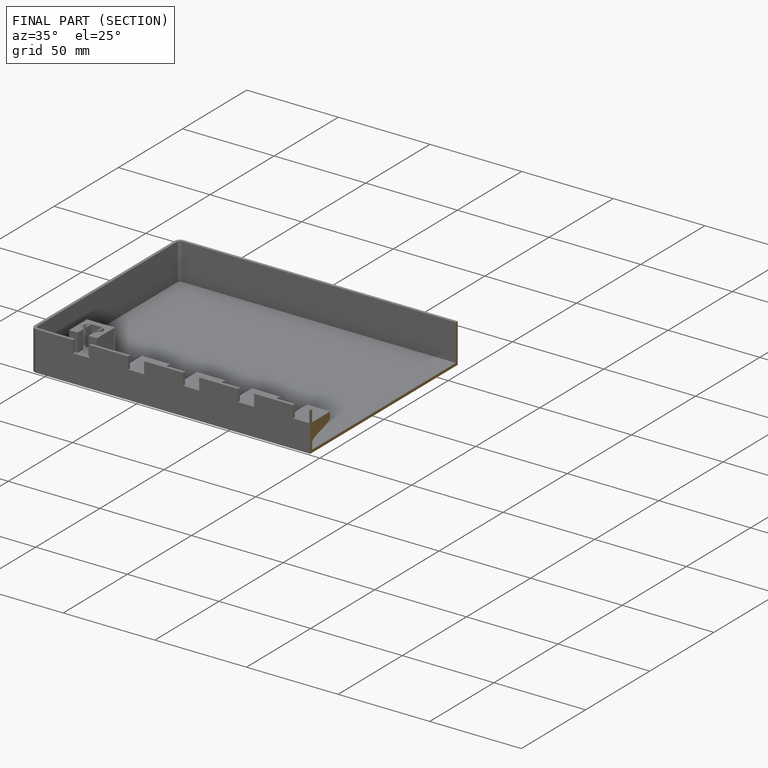
[diagram: finished part — half-section view (interior)]
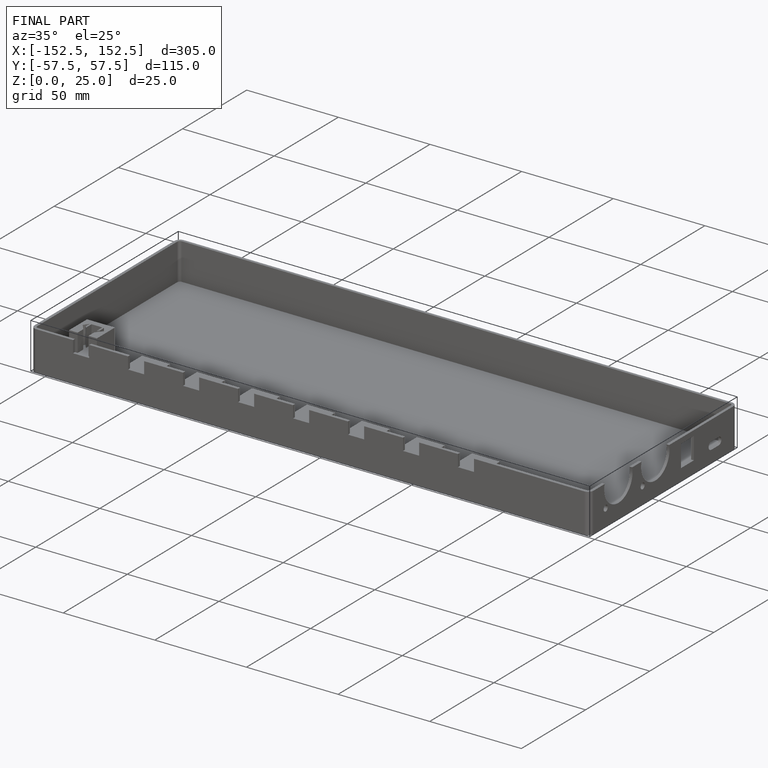
[diagram: finished part — iso view with bounding-box wireframe]
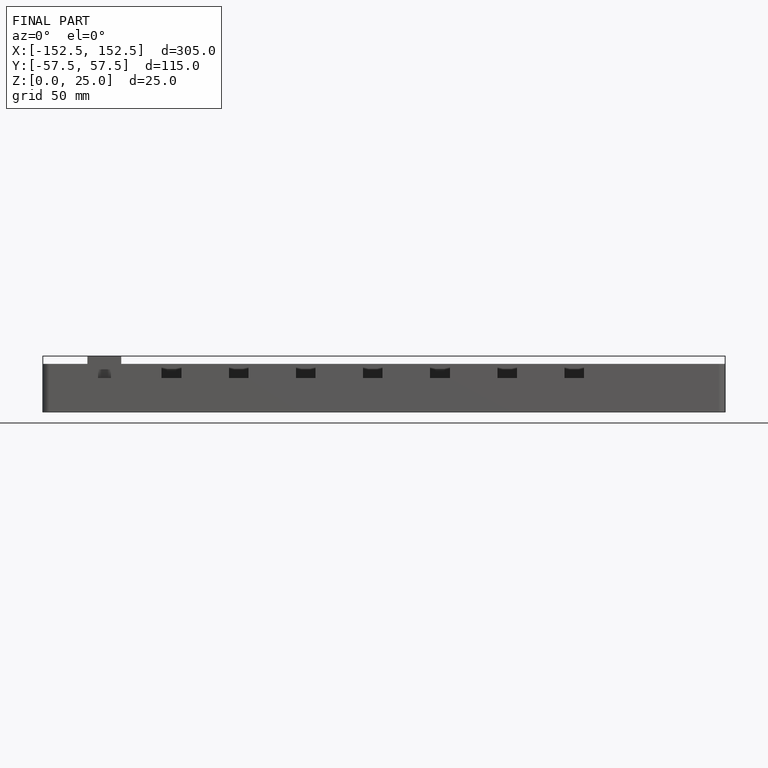
[diagram: finished part — front view with bounding-box wireframe]
